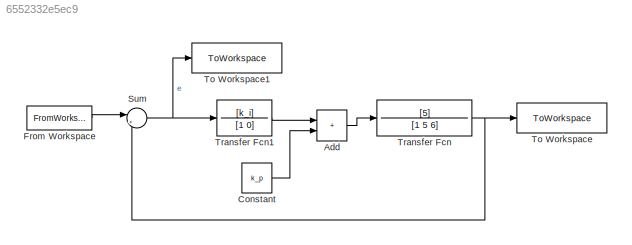
MODEL slx_6552332e5ec9
KIND model
CONFIG AbsTol = auto
CONFIG EnableMultiTasking = off
CONFIG FixedStep = 0.01
CONFIG MaxStep = auto
CONFIG MinStep = auto
CONFIG RelTol = 1e-3
CONFIG SampleTimeConstraint = Unconstrained
CONFIG SolverName = FixedStepAuto
CONFIG StartTime = 0.0
CONFIG StopTime = 10.0
BLOCK [Sum] Add
  IconShape = rectangular
BLOCK [Constant] Constant
  Value = k_p
BLOCK [FromWorkspace] From Workspace
  VariableName = g
BLOCK [Sum] Sum
  Inputs = |+-
BLOCK [ToWorkspace] To Workspace
  FixptAsFi = on
  MaxDataPoints = inf
  SampleTime = -1
  SaveFormat = Timeseries
  VariableName = y
BLOCK [ToWorkspace] To Workspace1
  FixptAsFi = on
  MaxDataPoints = inf
  SampleTime = -1
  SaveFormat = Timeseries
  VariableName = e
BLOCK [TransferFcn] Transfer Fcn
  Denominator = [1 5 6]
  Numerator = [5]
BLOCK [TransferFcn] Transfer Fcn1
  Denominator = [1 0]
  Numerator = [k_i]
LINE Add:1 -> Transfer Fcn:1
LINE Constant:1 -> Add:2
LINE From Workspace:1 -> Sum:1
NET Sum:1 -> To Workspace1:1, Transfer Fcn1:1
LINE Transfer Fcn1:1 -> Add:1
NET Transfer Fcn:1 -> Sum:2, To Workspace:1
note: NET lines group one-source signal fan-out (src -> all destinations, sorted); 1:1 wires keep LINE
